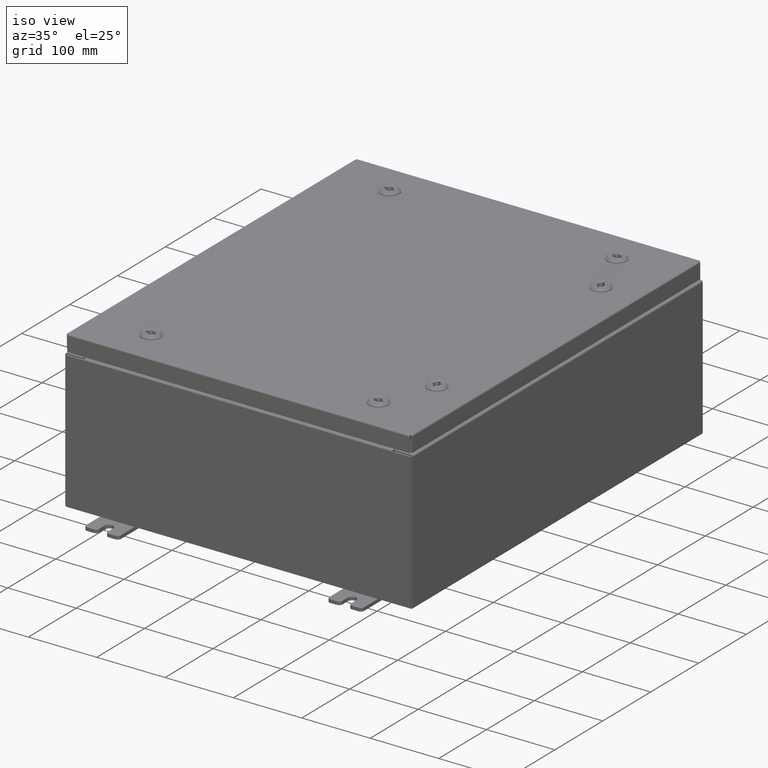
[diagram: clean part render]
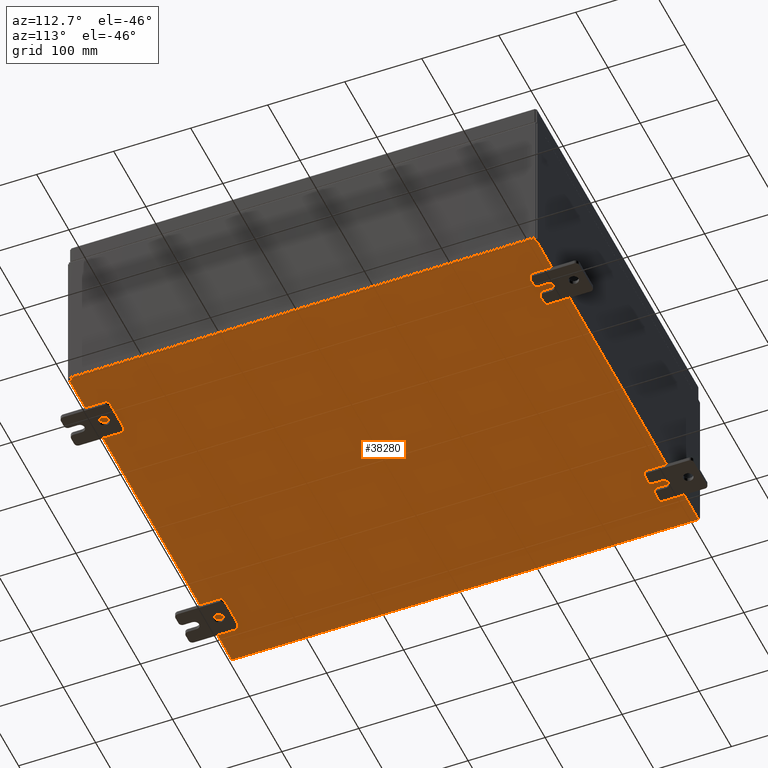
[diagram: tour spotlight — one face highlighted and labeled with its STEP entity id]
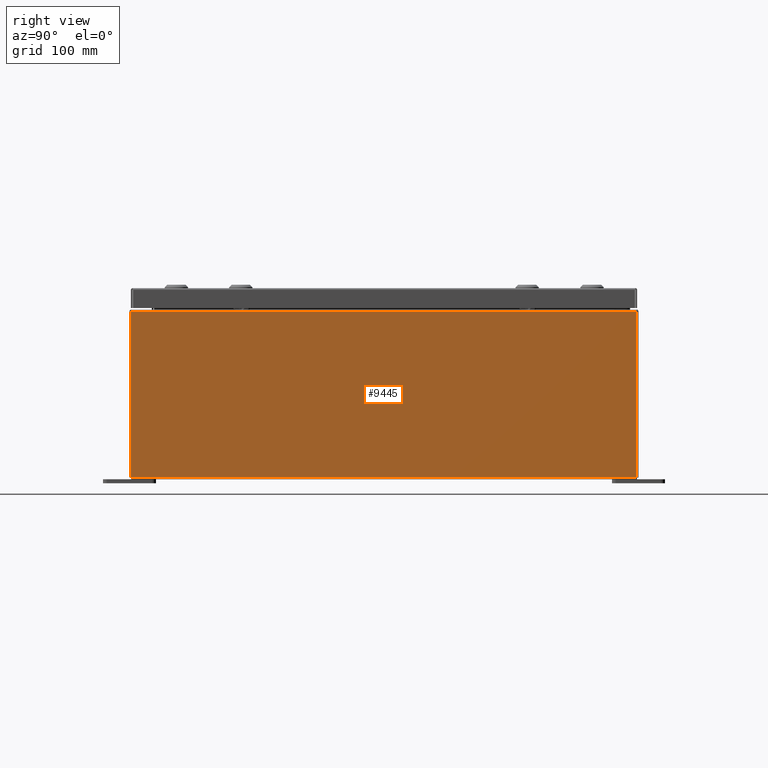
[diagram: tour spotlight — one face highlighted and labeled with its STEP entity id]
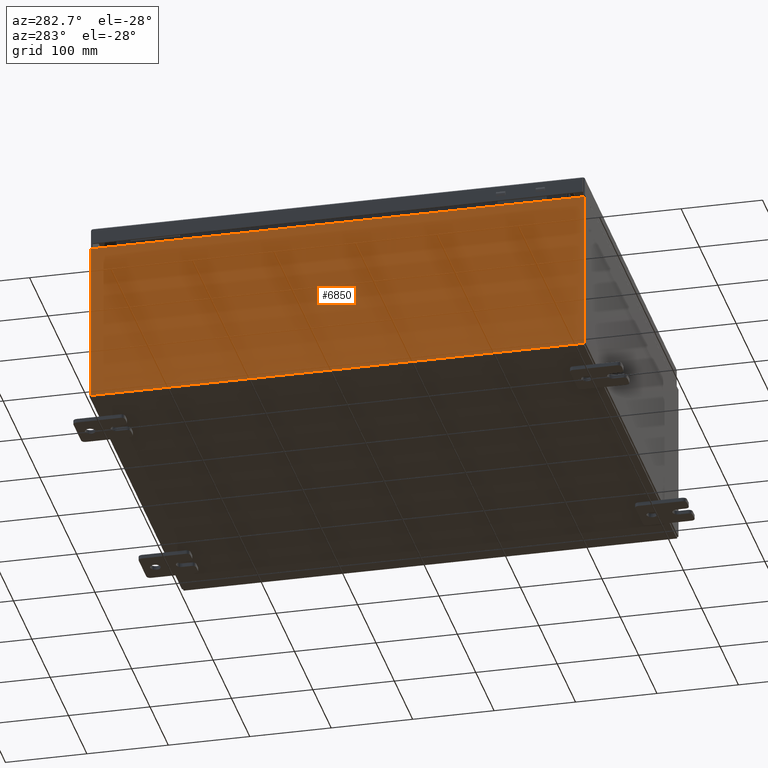
[diagram: tour spotlight — one face highlighted and labeled with its STEP entity id]
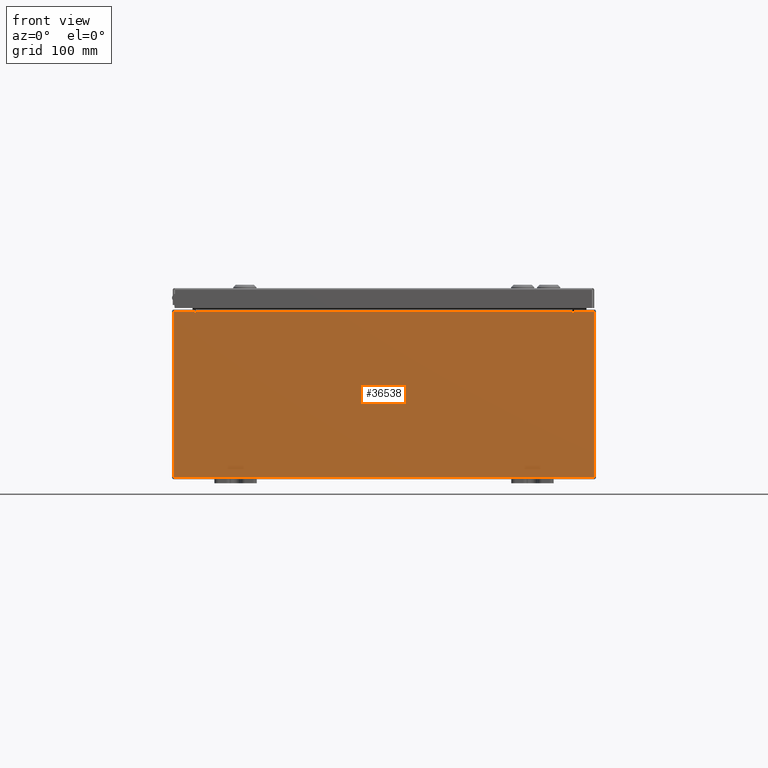
[diagram: tour spotlight — one face highlighted and labeled with its STEP entity id]
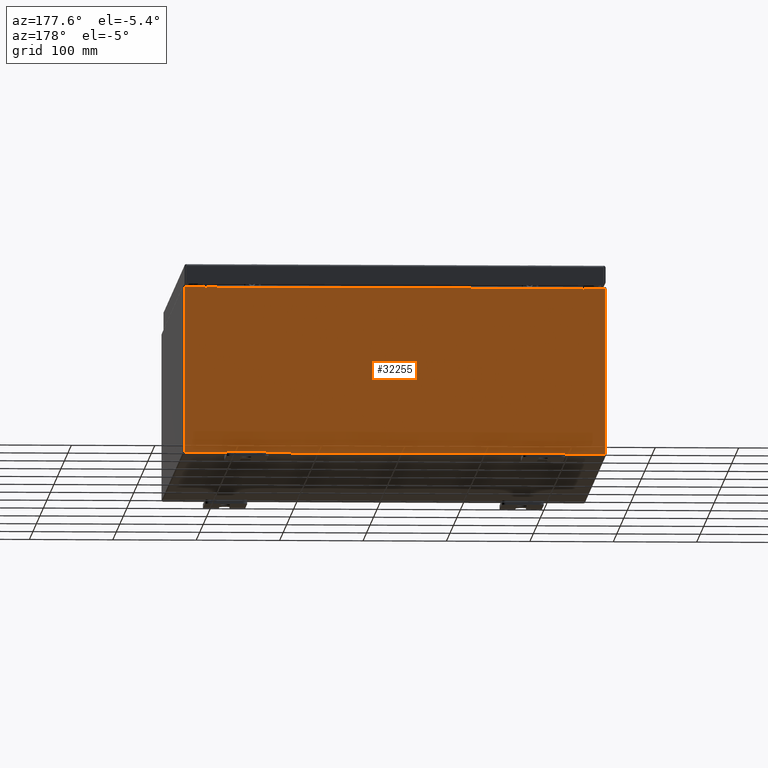
[diagram: tour spotlight — one face highlighted and labeled with its STEP entity id]
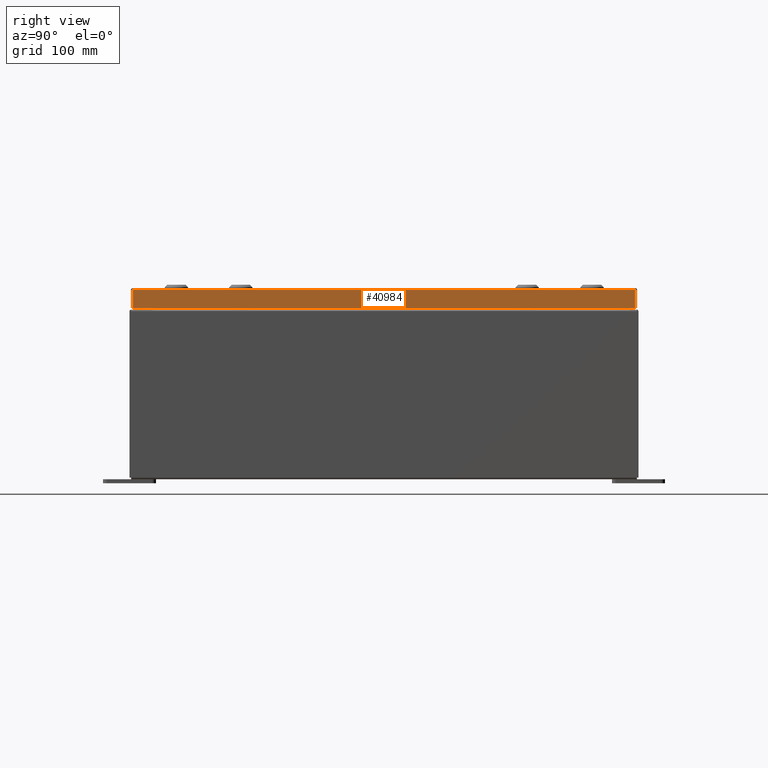
[diagram: tour spotlight — one face highlighted and labeled with its STEP entity id]
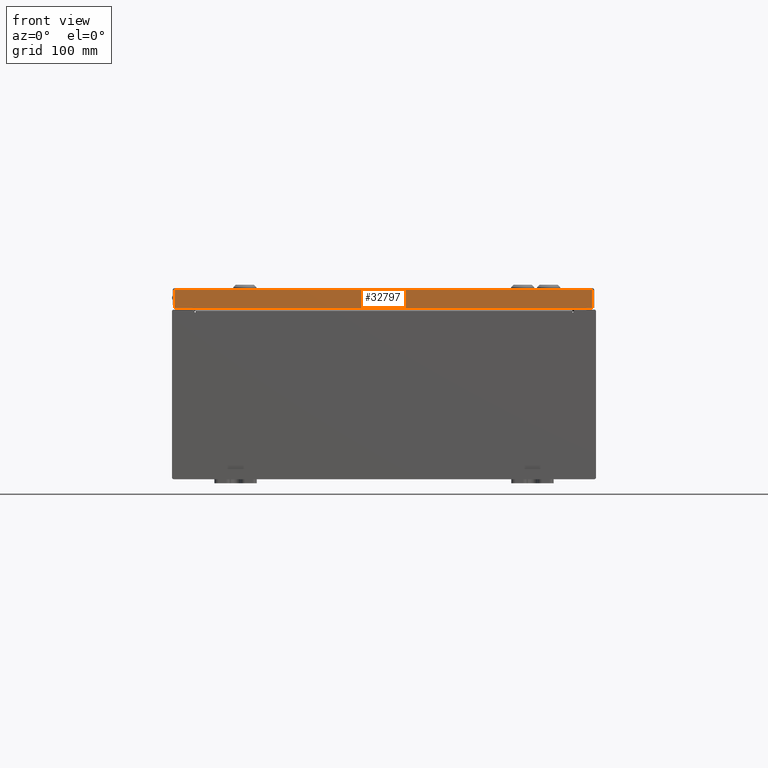
[diagram: tour spotlight — one face highlighted and labeled with its STEP entity id]
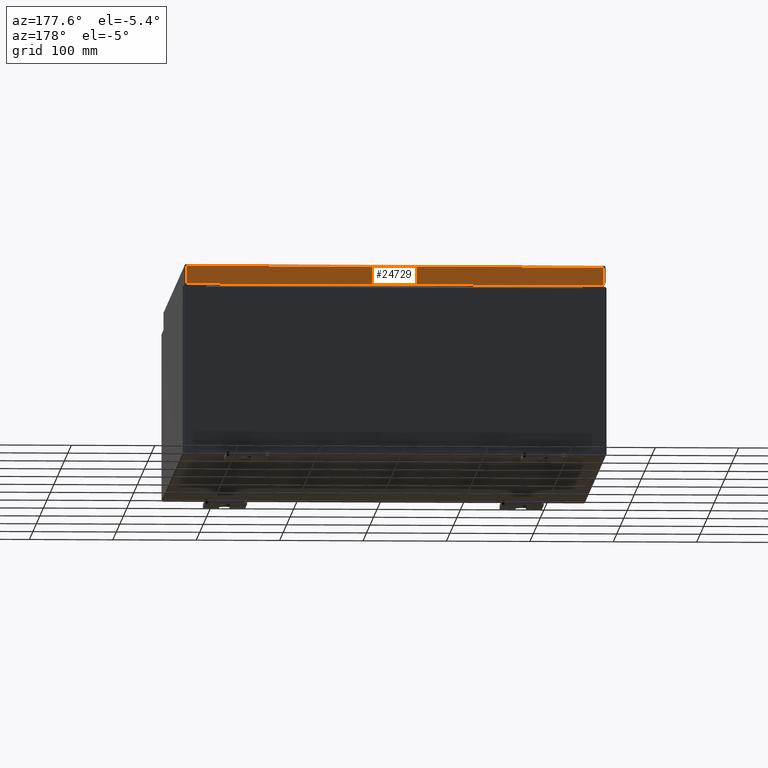
[diagram: tour spotlight — one face highlighted and labeled with its STEP entity id]
A machine part: a face-by-face anatomy tour. The part has 5420 B-rep faces; the first image is the clean iso view, then the 8 largest visible faces are spotlighted one at a time (largest first), each with its STEP entity span.

Face 1 — auxiliary view, entity #38280. In plain terms, the highlighted planar face has unit normal (0, 0, -1).
Definition (entity closure, byte-faithful):
#448 = DIRECTION ( 'NONE',  ( -1.000000000000000000, 0.0000000000000000000, -0.0000000000000000000 ) ) ;
#4368 = ORIENTED_EDGE ( 'NONE', *, *, #49358, .T. ) ;
#4683 = CARTESIAN_POINT ( 'NONE',  ( -9.912300000000000100, 11.92530000000000000, -0.07470000000000000300 ) ) ;
#5711 = DIRECTION ( 'NONE',  ( 1.000000000000000000, 0.0000000000000000000, 0.0000000000000000000 ) ) ;
#6492 = EDGE_CURVE ( 'NONE', #55885, #59183, #57642, .T. ) ;
#8258 = EDGE_CURVE ( 'NONE', #32728, #59183, #44493, .T. ) ;
#9872 = CARTESIAN_POINT ( 'NONE',  ( 9.912300000000000100, 11.92530000000000000, -0.07469999999999994700 ) ) ;
#9898 = EDGE_LOOP ( 'NONE', ( #47998, #41377, #17564, #4368 ) ) ;
#12381 = CARTESIAN_POINT ( 'NONE',  ( 9.912300000000000100, 11.92529999999999800, -0.07469999999999994700 ) ) ;
#13800 = VECTOR ( 'NONE', #5711, 39.37007874015748100 ) ;
#15310 = AXIS2_PLACEMENT_3D ( 'NONE', #54271, #29798, #448 ) ;
#17564 = ORIENTED_EDGE ( 'NONE', *, *, #8258, .F. ) ;
#20221 = CARTESIAN_POINT ( 'NONE',  ( -10.00000000000000000, -11.92530000000000000, -0.07470000000000000300 ) ) ;
#21238 = LINE ( 'NONE', #9872, #58925 ) ;
#24835 = PLANE ( 'NONE',  #15310 ) ;
#29798 = DIRECTION ( 'NONE',  ( 0.0000000000000000000, 0.0000000000000000000, -1.000000000000000000 ) ) ;
#32728 = VERTEX_POINT ( 'NONE', #12381 ) ;
#33397 = EDGE_CURVE ( 'NONE', #55885, #34973, #52944, .T. ) ;
#33437 = DIRECTION ( 'NONE',  ( -0.0000000000000000000, 1.000000000000000000, -0.0000000000000000000 ) ) ;
#34061 = DIRECTION ( 'NONE',  ( -0.0000000000000000000, -1.000000000000000000, -0.0000000000000000000 ) ) ;
#34630 = VECTOR ( 'NONE', #33437, 39.37007874015748100 ) ;
#34973 = VERTEX_POINT ( 'NONE', #59166 ) ;
#38280 = ADVANCED_FACE ( 'NONE', ( #47761 ), #24835, .T. ) ;
#41377 = ORIENTED_EDGE ( 'NONE', *, *, #6492, .T. ) ;
#42908 = VECTOR ( 'NONE', #45269, 39.37007874015748100 ) ;
#44493 = LINE ( 'NONE', #59833, #42908 ) ;
#45269 = DIRECTION ( 'NONE',  ( -1.000000000000000000, -0.0000000000000000000, -0.0000000000000000000 ) ) ;
#47761 = FACE_OUTER_BOUND ( 'NONE', #9898, .T. ) ;
#47998 = ORIENTED_EDGE ( 'NONE', *, *, #33397, .F. ) ;
#48260 = CARTESIAN_POINT ( 'NONE',  ( -9.912300000000000100, -11.92530000000000000, -0.07469999999999994700 ) ) ;
#49358 = EDGE_CURVE ( 'NONE', #32728, #34973, #21238, .T. ) ;
#52944 = LINE ( 'NONE', #20221, #13800 ) ;
#54271 = CARTESIAN_POINT ( 'NONE',  ( 0.0000000000000000000, 0.0000000000000000000, -0.07470000000000000300 ) ) ;
#55885 = VERTEX_POINT ( 'NONE', #62923 ) ;
#57642 = LINE ( 'NONE', #48260, #34630 ) ;
#58925 = VECTOR ( 'NONE', #34061, 39.37007874015748100 ) ;
#59166 = CARTESIAN_POINT ( 'NONE',  ( 9.912300000000000100, -11.92530000000000000, -0.07470000000000000300 ) ) ;
#59183 = VERTEX_POINT ( 'NONE', #4683 ) ;
#59833 = CARTESIAN_POINT ( 'NONE',  ( -10.00000000000000000, 11.92530000000000000, -0.07470000000000000300 ) ) ;
#62923 = CARTESIAN_POINT ( 'NONE',  ( -9.912300000000000100, -11.92529999999999800, -0.07469999999999994700 ) ) ;

Face 2 — right view, entity #9445. In plain terms, the highlighted planar face has unit normal (-1, 0, 0).
Definition (entity closure, byte-faithful):
#524 = CARTESIAN_POINT ( 'NONE',  ( 10.00000000000000000, -11.92530000000000000, 0.01299999999999984700 ) ) ;
#2202 = VECTOR ( 'NONE', #55506, 39.37007874015748100 ) ;
#6022 = LINE ( 'NONE', #45257, #17472 ) ;
#7447 = LINE ( 'NONE', #524, #31938 ) ;
#7645 = DIRECTION ( 'NONE',  ( -1.000000000000000000, 0.0000000000000000000, 3.584876173029202900E-015 ) ) ;
#9384 = VERTEX_POINT ( 'NONE', #41700 ) ;
#9445 = ADVANCED_FACE ( 'NONE', ( #29836 ), #51783, .F. ) ;
#14809 = EDGE_CURVE ( 'NONE', #53365, #9384, #19858, .T. ) ;
#15263 = LINE ( 'NONE', #50557, #2202 ) ;
#15887 = DIRECTION ( 'NONE',  ( -0.0000000000000000000, -1.000000000000000000, -0.0000000000000000000 ) ) ;
#16464 = CARTESIAN_POINT ( 'NONE',  ( 10.00000000000000000, 11.92529999999999800, 0.01299999999999984700 ) ) ;
#17439 = ORIENTED_EDGE ( 'NONE', *, *, #14809, .T. ) ;
#17472 = VECTOR ( 'NONE', #15887, 39.37007874015748100 ) ;
#19858 = LINE ( 'NONE', #23420, #32877 ) ;
#21380 = EDGE_CURVE ( 'NONE', #53365, #39662, #7447, .T. ) ;
#23420 = CARTESIAN_POINT ( 'NONE',  ( 10.00000000000000000, 11.92530000000000000, -3.610957538630361200E-014 ) ) ;
#25388 = ORIENTED_EDGE ( 'NONE', *, *, #21380, .F. ) ;
#26092 = CARTESIAN_POINT ( 'NONE',  ( 10.00000000000002800, -11.92530000000000000, 7.837599999999998300 ) ) ;
#28261 = AXIS2_PLACEMENT_3D ( 'NONE', #46869, #7645, #56727 ) ;
#28391 = DIRECTION ( 'NONE',  ( 3.584876173029202900E-015, 0.0000000000000000000, 1.000000000000000000 ) ) ;
#29836 = FACE_OUTER_BOUND ( 'NONE', #56090, .T. ) ;
#31938 = VECTOR ( 'NONE', #34811, 39.37007874015748100 ) ;
#32877 = VECTOR ( 'NONE', #28391, 39.37007874015748100 ) ;
#34811 = DIRECTION ( 'NONE',  ( -0.0000000000000000000, -1.000000000000000000, -0.0000000000000000000 ) ) ;
#35220 = EDGE_CURVE ( 'NONE', #49604, #39662, #15263, .T. ) ;
#39662 = VERTEX_POINT ( 'NONE', #53769 ) ;
#41700 = CARTESIAN_POINT ( 'NONE',  ( 10.00000000000002800, 11.92529999999999800, 7.837599999999992100 ) ) ;
#45257 = CARTESIAN_POINT ( 'NONE',  ( 10.00000000000002800, 11.92530000000000000, 7.837599999999992100 ) ) ;
#46869 = CARTESIAN_POINT ( 'NONE',  ( 10.00000000000000000, 0.0000000000000000000, -3.610957538630361200E-014 ) ) ;
#47210 = ORIENTED_EDGE ( 'NONE', *, *, #48980, .T. ) ;
#48980 = EDGE_CURVE ( 'NONE', #9384, #49604, #6022, .T. ) ;
#49604 = VERTEX_POINT ( 'NONE', #26092 ) ;
#50557 = CARTESIAN_POINT ( 'NONE',  ( 10.00000000000000000, -11.92530000000000000, -3.610957538630361200E-014 ) ) ;
#51783 = PLANE ( 'NONE',  #28261 ) ;
#53365 = VERTEX_POINT ( 'NONE', #16464 ) ;
#53769 = CARTESIAN_POINT ( 'NONE',  ( 10.00000000000000000, -11.92530000000000000, 0.01299999999999983600 ) ) ;
#55019 = ORIENTED_EDGE ( 'NONE', *, *, #35220, .T. ) ;
#55506 = DIRECTION ( 'NONE',  ( -3.584876173029202900E-015, 0.0000000000000000000, -1.000000000000000000 ) ) ;
#56090 = EDGE_LOOP ( 'NONE', ( #47210, #55019, #25388, #17439 ) ) ;
#56727 = DIRECTION ( 'NONE',  ( 3.584876173029202900E-015, 0.0000000000000000000, 1.000000000000000000 ) ) ;

Face 3 — auxiliary view, entity #6850. In plain terms, the highlighted planar face has unit normal (1, 0, 0).
Definition (entity closure, byte-faithful):
#1469 = ORIENTED_EDGE ( 'NONE', *, *, #57946, .T. ) ;
#3435 = EDGE_LOOP ( 'NONE', ( #10792, #1469, #3616, #31341 ) ) ;
#3616 = ORIENTED_EDGE ( 'NONE', *, *, #12134, .F. ) ;
#5284 = CARTESIAN_POINT ( 'NONE',  ( -10.00000000000000000, 11.92530000000000000, -3.610957538630361200E-014 ) ) ;
#6245 = VERTEX_POINT ( 'NONE', #12301 ) ;
#6850 = ADVANCED_FACE ( 'NONE', ( #56859 ), #46324, .F. ) ;
#9029 = DIRECTION ( 'NONE',  ( 0.0000000000000000000, 1.000000000000000000, 0.0000000000000000000 ) ) ;
#10792 = ORIENTED_EDGE ( 'NONE', *, *, #38026, .T. ) ;
#12134 = EDGE_CURVE ( 'NONE', #36486, #45779, #43046, .T. ) ;
#12301 = CARTESIAN_POINT ( 'NONE',  ( -10.00000000000002800, -11.92529999999999500, 7.837599999999999200 ) ) ;
#13450 = CARTESIAN_POINT ( 'NONE',  ( -10.00000000000002800, 11.92530000000000000, 7.837599999999999200 ) ) ;
#15458 = VERTEX_POINT ( 'NONE', #13450 ) ;
#16956 = DIRECTION ( 'NONE',  ( 1.000000000000000000, 0.0000000000000000000, 3.584876173029202900E-015 ) ) ;
#17613 = VECTOR ( 'NONE', #9029, 39.37007874015748100 ) ;
#17699 = EDGE_CURVE ( 'NONE', #36486, #6245, #37562, .T. ) ;
#24482 = VECTOR ( 'NONE', #36307, 39.37007874015748100 ) ;
#26535 = CARTESIAN_POINT ( 'NONE',  ( -10.00000000000000000, 0.0000000000000000000, -3.610957538630361200E-014 ) ) ;
#28495 = CARTESIAN_POINT ( 'NONE',  ( -10.00000000000002800, -11.92530000000000000, 7.837599999999999200 ) ) ;
#29121 = VECTOR ( 'NONE', #58503, 39.37007874015748100 ) ;
#30668 = LINE ( 'NONE', #28495, #17613 ) ;
#31341 = ORIENTED_EDGE ( 'NONE', *, *, #17699, .T. ) ;
#31818 = CARTESIAN_POINT ( 'NONE',  ( -10.00000000000000000, -11.92529999999999800, 0.01299999999999984700 ) ) ;
#33171 = CARTESIAN_POINT ( 'NONE',  ( -10.00000000000000000, 11.92530000000000000, 0.01299999999999984700 ) ) ;
#33539 = AXIS2_PLACEMENT_3D ( 'NONE', #26535, #16956, #51256 ) ;
#36307 = DIRECTION ( 'NONE',  ( -3.584876173029202900E-015, 0.0000000000000000000, 1.000000000000000000 ) ) ;
#36486 = VERTEX_POINT ( 'NONE', #31818 ) ;
#37562 = LINE ( 'NONE', #45980, #24482 ) ;
#38026 = EDGE_CURVE ( 'NONE', #6245, #15458, #30668, .T. ) ;
#41528 = VECTOR ( 'NONE', #47970, 39.37007874015748100 ) ;
#43046 = LINE ( 'NONE', #33171, #41528 ) ;
#45779 = VERTEX_POINT ( 'NONE', #47678 ) ;
#45980 = CARTESIAN_POINT ( 'NONE',  ( -10.00000000000000000, -11.92530000000000000, -3.610957538630361200E-014 ) ) ;
#46324 = PLANE ( 'NONE',  #33539 ) ;
#47678 = CARTESIAN_POINT ( 'NONE',  ( -10.00000000000000000, 11.92530000000000000, 0.01299999999999983600 ) ) ;
#47970 = DIRECTION ( 'NONE',  ( -0.0000000000000000000, 1.000000000000000000, -0.0000000000000000000 ) ) ;
#51256 = DIRECTION ( 'NONE',  ( 3.584876173029202900E-015, 0.0000000000000000000, -1.000000000000000000 ) ) ;
#56790 = LINE ( 'NONE', #5284, #29121 ) ;
#56859 = FACE_OUTER_BOUND ( 'NONE', #3435, .T. ) ;
#57946 = EDGE_CURVE ( 'NONE', #15458, #45779, #56790, .T. ) ;
#58503 = DIRECTION ( 'NONE',  ( 3.584876173029202900E-015, 0.0000000000000000000, -1.000000000000000000 ) ) ;

Face 4 — front view, entity #36538. In plain terms, the highlighted planar face has unit normal (-0, 1, -0).
Definition (entity closure, byte-faithful):
#1486 = DIRECTION ( 'NONE',  ( 1.000000000000000000, 0.0000000000000000000, 0.0000000000000000000 ) ) ;
#2368 = ORIENTED_EDGE ( 'NONE', *, *, #40677, .T. ) ;
#2388 = CARTESIAN_POINT ( 'NONE',  ( -8.905874999999998200, 0.0000000000000000000, 3.874949999999999700 ) ) ;
#2826 = VECTOR ( 'NONE', #18896, 39.37007874015748100 ) ;
#4478 = CARTESIAN_POINT ( 'NONE',  ( -9.925300000000000000, 0.0000000000000000000, 3.925299999999999600 ) ) ;
#5023 = VERTEX_POINT ( 'NONE', #47982 ) ;
#5471 = ORIENTED_EDGE ( 'NONE', *, *, #8925, .F. ) ;
#6211 = ORIENTED_EDGE ( 'NONE', *, *, #25896, .F. ) ;
#7220 = EDGE_CURVE ( 'NONE', #28067, #51413, #60675, .T. ) ;
#7322 = DIRECTION ( 'NONE',  ( 0.0000000000000000000, 0.0000000000000000000, -1.000000000000000000 ) ) ;
#7650 = DIRECTION ( 'NONE',  ( 0.0000000000000000000, -1.000000000000000000, 0.0000000000000000000 ) ) ;
#8925 = EDGE_CURVE ( 'NONE', #21449, #51413, #40593, .T. ) ;
#8941 = ORIENTED_EDGE ( 'NONE', *, *, #19127, .T. ) ;
#9482 = VECTOR ( 'NONE', #38790, 39.37007874015748100 ) ;
#9692 = ORIENTED_EDGE ( 'NONE', *, *, #36171, .F. ) ;
#10643 = LINE ( 'NONE', #31275, #35166 ) ;
#12068 = EDGE_CURVE ( 'NONE', #38954, #49875, #44633, .T. ) ;
#12354 = CARTESIAN_POINT ( 'NONE',  ( 0.0000000000000000000, 0.0000000000000000000, 0.0000000000000000000 ) ) ;
#13268 = DIRECTION ( 'NONE',  ( 0.0000000000000000000, 0.0000000000000000000, -1.000000000000000000 ) ) ;
#13745 = DIRECTION ( 'NONE',  ( -0.0000000000000000000, 1.000000000000000000, -0.0000000000000000000 ) ) ;
#14533 = VECTOR ( 'NONE', #1486, 39.37007874015748100 ) ;
#14941 = CARTESIAN_POINT ( 'NONE',  ( 9.925300000000000000, 0.0000000000000000000, 3.925299999999999600 ) ) ;
#15235 = CIRCLE ( 'NONE', #23770, 0.01867500000000003900 ) ;
#15795 = DIRECTION ( 'NONE',  ( 0.0000000000000000000, 0.0000000000000000000, -1.000000000000000000 ) ) ;
#17559 = CARTESIAN_POINT ( 'NONE',  ( 9.925300000000000000, 0.0000000000000000000, -3.925299999999999600 ) ) ;
#17666 = CARTESIAN_POINT ( 'NONE',  ( -9.925300000000000000, 0.0000000000000000000, 3.925299999999999600 ) ) ;
#18896 = DIRECTION ( 'NONE',  ( -1.000000000000000000, -0.0000000000000000000, -0.0000000000000000000 ) ) ;
#19023 = CARTESIAN_POINT ( 'NONE',  ( -9.925300000000000000, 0.0000000000000000000, 3.925299999999999600 ) ) ;
#19103 = CIRCLE ( 'NONE', #35849, 0.01867500000000003900 ) ;
#19127 = EDGE_CURVE ( 'NONE', #32569, #62309, #10643, .T. ) ;
#19938 = CARTESIAN_POINT ( 'NONE',  ( 8.924549999999831200, -0.0000000000000000000, -3.873765880731813500E-013 ) ) ;
#20043 = VECTOR ( 'NONE', #13268, 39.37007874015748100 ) ;
#20342 = CARTESIAN_POINT ( 'NONE',  ( 8.924550000000000000, 0.0000000000000000000, 3.925299999999999600 ) ) ;
#21060 = ORIENTED_EDGE ( 'NONE', *, *, #41738, .T. ) ;
#21449 = VERTEX_POINT ( 'NONE', #44905 ) ;
#22545 = ORIENTED_EDGE ( 'NONE', *, *, #25864, .T. ) ;
#22996 = VECTOR ( 'NONE', #33806, 39.37007874015748100 ) ;
#23318 = ORIENTED_EDGE ( 'NONE', *, *, #7220, .T. ) ;
#23770 = AXIS2_PLACEMENT_3D ( 'NONE', #2388, #36660, #7322 ) ;
#25864 = EDGE_CURVE ( 'NONE', #49405, #28067, #53227, .T. ) ;
#25896 = EDGE_CURVE ( 'NONE', #38111, #58668, #63160, .T. ) ;
#27298 = LINE ( 'NONE', #48302, #2826 ) ;
#27817 = CARTESIAN_POINT ( 'NONE',  ( -8.887200000000000000, -0.0000000000000000000, 0.0000000000000000000 ) ) ;
#28067 = VERTEX_POINT ( 'NONE', #17666 ) ;
#28914 = CARTESIAN_POINT ( 'NONE',  ( 8.887200000000000000, 0.0000000000000000000, 3.874949999999999700 ) ) ;
#28967 = AXIS2_PLACEMENT_3D ( 'NONE', #12354, #7650, #41901 ) ;
#29503 = DIRECTION ( 'NONE',  ( 0.0000000000000000000, 0.0000000000000000000, 1.000000000000000000 ) ) ;
#29525 = CARTESIAN_POINT ( 'NONE',  ( -8.887200000000000000, 1.024442997624098700E-016, 3.912299999999999700 ) ) ;
#30838 = CARTESIAN_POINT ( 'NONE',  ( -8.887200000000000000, 1.024442997624098700E-016, 3.912299999999999700 ) ) ;
#31275 = CARTESIAN_POINT ( 'NONE',  ( -9.925300000000000000, 0.0000000000000000000, 3.925299999999999600 ) ) ;
#32159 = CARTESIAN_POINT ( 'NONE',  ( -8.924550000000000000, 0.0000000000000000000, 3.925299999999999600 ) ) ;
#32308 = EDGE_CURVE ( 'NONE', #5023, #38111, #19103, .T. ) ;
#32569 = VERTEX_POINT ( 'NONE', #20342 ) ;
#32784 = VECTOR ( 'NONE', #15795, 39.37007874015748100 ) ;
#33002 = ORIENTED_EDGE ( 'NONE', *, *, #32308, .F. ) ;
#33806 = DIRECTION ( 'NONE',  ( 1.000000000000000000, 0.0000000000000000000, 0.0000000000000000000 ) ) ;
#33840 = CARTESIAN_POINT ( 'NONE',  ( 8.887200000000000000, 0.0000000000000000000, 0.0000000000000000000 ) ) ;
#35166 = VECTOR ( 'NONE', #36222, 39.37007874015748100 ) ;
#35258 = CARTESIAN_POINT ( 'NONE',  ( 9.925300000000000000, 0.0000000000000000000, 3.925299999999999600 ) ) ;
#35849 = AXIS2_PLACEMENT_3D ( 'NONE', #43098, #13745, #48022 ) ;
#36171 = EDGE_CURVE ( 'NONE', #32569, #5023, #39727, .T. ) ;
#36222 = DIRECTION ( 'NONE',  ( 1.000000000000000000, 0.0000000000000000000, 0.0000000000000000000 ) ) ;
#36538 = ADVANCED_FACE ( 'NONE', ( #43503 ), #41705, .F. ) ;
#36660 = DIRECTION ( 'NONE',  ( -0.0000000000000000000, 1.000000000000000000, -0.0000000000000000000 ) ) ;
#38111 = VERTEX_POINT ( 'NONE', #28914 ) ;
#38790 = DIRECTION ( 'NONE',  ( 0.0000000000000000000, 0.0000000000000000000, 1.000000000000000000 ) ) ;
#38954 = VERTEX_POINT ( 'NONE', #29525 ) ;
#39402 = CARTESIAN_POINT ( 'NONE',  ( -8.924550000000000000, -0.0000000000000000000, 0.0000000000000000000 ) ) ;
#39727 = LINE ( 'NONE', #19938, #52742 ) ;
#40574 = LINE ( 'NONE', #30838, #14533 ) ;
#40593 = LINE ( 'NONE', #39402, #52104 ) ;
#40677 = EDGE_CURVE ( 'NONE', #38954, #58668, #40574, .T. ) ;
#41705 = PLANE ( 'NONE',  #28967 ) ;
#41738 = EDGE_CURVE ( 'NONE', #62309, #52693, #60471, .T. ) ;
#41901 = DIRECTION ( 'NONE',  ( 0.0000000000000000000, -0.0000000000000000000, -1.000000000000000000 ) ) ;
#43098 = CARTESIAN_POINT ( 'NONE',  ( 8.905875000000000000, 0.0000000000000000000, 3.874949999999999700 ) ) ;
#43186 = EDGE_CURVE ( 'NONE', #52693, #49405, #27298, .T. ) ;
#43503 = FACE_OUTER_BOUND ( 'NONE', #58559, .T. ) ;
#44404 = DIRECTION ( 'NONE',  ( -4.340572780400004900E-014, 0.0000000000000000000, -1.000000000000000000 ) ) ;
#44633 = LINE ( 'NONE', #27817, #20043 ) ;
#44905 = CARTESIAN_POINT ( 'NONE',  ( -8.924549999999998200, 0.0000000000000000000, 3.874949999999999700 ) ) ;
#46483 = ORIENTED_EDGE ( 'NONE', *, *, #43186, .T. ) ;
#47982 = CARTESIAN_POINT ( 'NONE',  ( 8.924550000000000000, 0.0000000000000000000, 3.874949999999999700 ) ) ;
#48022 = DIRECTION ( 'NONE',  ( 0.0000000000000000000, 0.0000000000000000000, -1.000000000000000000 ) ) ;
#48302 = CARTESIAN_POINT ( 'NONE',  ( -9.925300000000000000, 0.0000000000000000000, -3.925299999999999600 ) ) ;
#48439 = DIRECTION ( 'NONE',  ( -0.0000000000000000000, -0.0000000000000000000, 1.000000000000000000 ) ) ;
#48597 = VECTOR ( 'NONE', #48439, 39.37007874015748100 ) ;
#49135 = ORIENTED_EDGE ( 'NONE', *, *, #12068, .F. ) ;
#49405 = VERTEX_POINT ( 'NONE', #54053 ) ;
#49875 = VERTEX_POINT ( 'NONE', #51820 ) ;
#51413 = VERTEX_POINT ( 'NONE', #32159 ) ;
#51820 = CARTESIAN_POINT ( 'NONE',  ( -8.887200000000000000, -0.0000000000000000000, 3.874949999999999700 ) ) ;
#52104 = VECTOR ( 'NONE', #29503, 39.37007874015748100 ) ;
#52693 = VERTEX_POINT ( 'NONE', #17559 ) ;
#52742 = VECTOR ( 'NONE', #44404, 39.37007874015748100 ) ;
#53227 = LINE ( 'NONE', #19023, #48597 ) ;
#54053 = CARTESIAN_POINT ( 'NONE',  ( -9.925300000000000000, 0.0000000000000000000, -3.925299999999999600 ) ) ;
#55356 = ORIENTED_EDGE ( 'NONE', *, *, #60746, .F. ) ;
#58559 = EDGE_LOOP ( 'NONE', ( #5471, #55356, #49135, #2368, #6211, #33002, #9692, #8941, #21060, #46483, #22545, #23318 ) ) ;
#58668 = VERTEX_POINT ( 'NONE', #59599 ) ;
#59599 = CARTESIAN_POINT ( 'NONE',  ( 8.887200000000000000, 0.0000000000000000000, 3.912299999999999700 ) ) ;
#60471 = LINE ( 'NONE', #35258, #32784 ) ;
#60675 = LINE ( 'NONE', #4478, #22996 ) ;
#60746 = EDGE_CURVE ( 'NONE', #49875, #21449, #15235, .T. ) ;
#62309 = VERTEX_POINT ( 'NONE', #14941 ) ;
#63160 = LINE ( 'NONE', #33840, #9482 ) ;

Face 5 — auxiliary view, entity #32255. In plain terms, the highlighted planar face has unit normal (0, -1, 0).
Definition (entity closure, byte-faithful):
#1638 = VERTEX_POINT ( 'NONE', #36340 ) ;
#1793 = LINE ( 'NONE', #16601, #11505 ) ;
#2944 = CARTESIAN_POINT ( 'NONE',  ( -8.924550000000000000, -0.0000000000000000000, 0.0000000000000000000 ) ) ;
#3615 = ORIENTED_EDGE ( 'NONE', *, *, #22913, .F. ) ;
#3745 = EDGE_CURVE ( 'NONE', #34903, #10431, #45554, .T. ) ;
#3888 = CARTESIAN_POINT ( 'NONE',  ( 8.887200000000000000, 0.0000000000000000000, 3.874949999999999700 ) ) ;
#4655 = CARTESIAN_POINT ( 'NONE',  ( 0.0000000000000000000, 0.0000000000000000000, 0.0000000000000000000 ) ) ;
#5589 = LINE ( 'NONE', #2944, #41576 ) ;
#5623 = EDGE_CURVE ( 'NONE', #26602, #60751, #5589, .T. ) ;
#8318 = CARTESIAN_POINT ( 'NONE',  ( -8.887200000000000000, -0.0000000000000000000, 3.874949999999999700 ) ) ;
#8586 = CARTESIAN_POINT ( 'NONE',  ( -8.887200000000000000, -0.0000000000000000000, 0.0000000000000000000 ) ) ;
#8820 = DIRECTION ( 'NONE',  ( -0.0000000000000000000, 1.000000000000000000, -0.0000000000000000000 ) ) ;
#9850 = VERTEX_POINT ( 'NONE', #11737 ) ;
#10431 = VERTEX_POINT ( 'NONE', #11467 ) ;
#10522 = LINE ( 'NONE', #24380, #25044 ) ;
#11467 = CARTESIAN_POINT ( 'NONE',  ( -9.925300000000000000, 0.0000000000000000000, 3.925299999999999600 ) ) ;
#11505 = VECTOR ( 'NONE', #45970, 39.37007874015748100 ) ;
#11589 = ORIENTED_EDGE ( 'NONE', *, *, #33216, .T. ) ;
#11737 = CARTESIAN_POINT ( 'NONE',  ( 9.925300000000000000, 0.0000000000000000000, -3.925299999999999600 ) ) ;
#11987 = CARTESIAN_POINT ( 'NONE',  ( 9.925300000000000000, 0.0000000000000000000, 3.925299999999999600 ) ) ;
#12410 = ORIENTED_EDGE ( 'NONE', *, *, #29481, .T. ) ;
#13480 = DIRECTION ( 'NONE',  ( 0.0000000000000000000, 0.0000000000000000000, -1.000000000000000000 ) ) ;
#14528 = CARTESIAN_POINT ( 'NONE',  ( -9.925300000000000000, 0.0000000000000000000, -3.925299999999999600 ) ) ;
#16601 = CARTESIAN_POINT ( 'NONE',  ( 8.924549999999831200, -0.0000000000000000000, -3.873765880731813500E-013 ) ) ;
#16995 = LINE ( 'NONE', #44683, #25374 ) ;
#17011 = CARTESIAN_POINT ( 'NONE',  ( 8.887200000000000000, 0.0000000000000000000, 3.912299999999999700 ) ) ;
#18137 = CARTESIAN_POINT ( 'NONE',  ( -9.925300000000000000, 0.0000000000000000000, -3.925299999999999600 ) ) ;
#19923 = CARTESIAN_POINT ( 'NONE',  ( 8.924550000000000000, 0.0000000000000000000, 3.925299999999999600 ) ) ;
#19983 = DIRECTION ( 'NONE',  ( 1.000000000000000000, 0.0000000000000000000, 0.0000000000000000000 ) ) ;
#20019 = DIRECTION ( 'NONE',  ( -0.0000000000000000000, -0.0000000000000000000, 1.000000000000000000 ) ) ;
#20116 = VERTEX_POINT ( 'NONE', #8318 ) ;
#20500 = ORIENTED_EDGE ( 'NONE', *, *, #3745, .T. ) ;
#20798 = ORIENTED_EDGE ( 'NONE', *, *, #22765, .F. ) ;
#22165 = FACE_OUTER_BOUND ( 'NONE', #58469, .T. ) ;
#22424 = CARTESIAN_POINT ( 'NONE',  ( -8.905874999999998200, 0.0000000000000000000, 3.874949999999999700 ) ) ;
#22765 = EDGE_CURVE ( 'NONE', #50350, #36908, #10522, .T. ) ;
#22913 = EDGE_CURVE ( 'NONE', #20116, #26602, #59620, .T. ) ;
#23045 = DIRECTION ( 'NONE',  ( 1.000000000000000000, 0.0000000000000000000, 0.0000000000000000000 ) ) ;
#24088 = DIRECTION ( 'NONE',  ( -1.000000000000000000, -0.0000000000000000000, -0.0000000000000000000 ) ) ;
#24280 = DIRECTION ( 'NONE',  ( 0.0000000000000000000, -1.000000000000000000, 0.0000000000000000000 ) ) ;
#24347 = VERTEX_POINT ( 'NONE', #25110 ) ;
#24380 = CARTESIAN_POINT ( 'NONE',  ( 8.887200000000000000, 0.0000000000000000000, 0.0000000000000000000 ) ) ;
#24396 = VECTOR ( 'NONE', #23045, 39.37007874015748100 ) ;
#24491 = DIRECTION ( 'NONE',  ( 1.000000000000000000, 0.0000000000000000000, 0.0000000000000000000 ) ) ;
#25044 = VECTOR ( 'NONE', #39244, 39.37007874015748100 ) ;
#25110 = CARTESIAN_POINT ( 'NONE',  ( -8.887200000000000000, 1.024442997624098700E-016, 3.912299999999999700 ) ) ;
#25374 = VECTOR ( 'NONE', #19983, 39.37007874015748100 ) ;
#26602 = VERTEX_POINT ( 'NONE', #34118 ) ;
#26757 = CARTESIAN_POINT ( 'NONE',  ( -8.924550000000000000, 0.0000000000000000000, 3.925299999999999600 ) ) ;
#26839 = VECTOR ( 'NONE', #50967, 39.37007874015748100 ) ;
#27355 = DIRECTION ( 'NONE',  ( 0.0000000000000000000, 0.0000000000000000000, -1.000000000000000000 ) ) ;
#28613 = EDGE_CURVE ( 'NONE', #10431, #60751, #16995, .T. ) ;
#29235 = CARTESIAN_POINT ( 'NONE',  ( -9.925300000000000000, 0.0000000000000000000, 3.925299999999999600 ) ) ;
#29266 = AXIS2_PLACEMENT_3D ( 'NONE', #4655, #24280, #58675 ) ;
#29481 = EDGE_CURVE ( 'NONE', #34627, #9850, #52976, .T. ) ;
#29929 = LINE ( 'NONE', #58867, #42939 ) ;
#30710 = ORIENTED_EDGE ( 'NONE', *, *, #28613, .T. ) ;
#31407 = CARTESIAN_POINT ( 'NONE',  ( 9.925300000000000000, 0.0000000000000000000, 3.925299999999999600 ) ) ;
#31825 = ORIENTED_EDGE ( 'NONE', *, *, #53923, .F. ) ;
#32255 = ADVANCED_FACE ( 'NONE', ( #22165 ), #53751, .F. ) ;
#32289 = DIRECTION ( 'NONE',  ( 0.0000000000000000000, 0.0000000000000000000, 1.000000000000000000 ) ) ;
#32437 = VECTOR ( 'NONE', #13480, 39.37007874015748100 ) ;
#32443 = VECTOR ( 'NONE', #20019, 39.37007874015748100 ) ;
#33216 = EDGE_CURVE ( 'NONE', #38279, #34627, #29929, .T. ) ;
#33705 = CIRCLE ( 'NONE', #42736, 0.01867500000000003900 ) ;
#33918 = ORIENTED_EDGE ( 'NONE', *, *, #34896, .T. ) ;
#34118 = CARTESIAN_POINT ( 'NONE',  ( -8.924549999999998200, 0.0000000000000000000, 3.874949999999999700 ) ) ;
#34627 = VERTEX_POINT ( 'NONE', #11987 ) ;
#34813 = ORIENTED_EDGE ( 'NONE', *, *, #38011, .F. ) ;
#34896 = EDGE_CURVE ( 'NONE', #24347, #36908, #62032, .T. ) ;
#34903 = VERTEX_POINT ( 'NONE', #18137 ) ;
#36340 = CARTESIAN_POINT ( 'NONE',  ( 8.924550000000000000, 0.0000000000000000000, 3.874949999999999700 ) ) ;
#36908 = VERTEX_POINT ( 'NONE', #17011 ) ;
#38011 = EDGE_CURVE ( 'NONE', #1638, #50350, #33705, .T. ) ;
#38176 = CARTESIAN_POINT ( 'NONE',  ( 8.905875000000000000, 0.0000000000000000000, 3.874949999999999700 ) ) ;
#38279 = VERTEX_POINT ( 'NONE', #19923 ) ;
#39244 = DIRECTION ( 'NONE',  ( 0.0000000000000000000, 0.0000000000000000000, 1.000000000000000000 ) ) ;
#39963 = AXIS2_PLACEMENT_3D ( 'NONE', #22424, #56799, #27355 ) ;
#41576 = VECTOR ( 'NONE', #32289, 39.37007874015748100 ) ;
#42517 = EDGE_CURVE ( 'NONE', #9850, #34903, #45833, .T. ) ;
#42736 = AXIS2_PLACEMENT_3D ( 'NONE', #38176, #8820, #43090 ) ;
#42939 = VECTOR ( 'NONE', #24491, 39.37007874015748100 ) ;
#43090 = DIRECTION ( 'NONE',  ( 0.0000000000000000000, 0.0000000000000000000, -1.000000000000000000 ) ) ;
#44683 = CARTESIAN_POINT ( 'NONE',  ( -9.925300000000000000, 0.0000000000000000000, 3.925299999999999600 ) ) ;
#45552 = LINE ( 'NONE', #8586, #32437 ) ;
#45554 = LINE ( 'NONE', #29235, #32443 ) ;
#45833 = LINE ( 'NONE', #14528, #58892 ) ;
#45970 = DIRECTION ( 'NONE',  ( -4.340572780400004900E-014, 0.0000000000000000000, -1.000000000000000000 ) ) ;
#47535 = ORIENTED_EDGE ( 'NONE', *, *, #42517, .T. ) ;
#48795 = ORIENTED_EDGE ( 'NONE', *, *, #5623, .F. ) ;
#50350 = VERTEX_POINT ( 'NONE', #3888 ) ;
#50967 = DIRECTION ( 'NONE',  ( 0.0000000000000000000, 0.0000000000000000000, -1.000000000000000000 ) ) ;
#52485 = CARTESIAN_POINT ( 'NONE',  ( -8.887200000000000000, 1.024442997624098700E-016, 3.912299999999999700 ) ) ;
#52976 = LINE ( 'NONE', #31407, #26839 ) ;
#53751 = PLANE ( 'NONE',  #29266 ) ;
#53923 = EDGE_CURVE ( 'NONE', #24347, #20116, #45552, .T. ) ;
#56799 = DIRECTION ( 'NONE',  ( -0.0000000000000000000, 1.000000000000000000, -0.0000000000000000000 ) ) ;
#58183 = EDGE_CURVE ( 'NONE', #38279, #1638, #1793, .T. ) ;
#58469 = EDGE_LOOP ( 'NONE', ( #48795, #3615, #31825, #33918, #20798, #34813, #60238, #11589, #12410, #47535, #20500, #30710 ) ) ;
#58675 = DIRECTION ( 'NONE',  ( 0.0000000000000000000, -0.0000000000000000000, -1.000000000000000000 ) ) ;
#58867 = CARTESIAN_POINT ( 'NONE',  ( -9.925300000000000000, 0.0000000000000000000, 3.925299999999999600 ) ) ;
#58892 = VECTOR ( 'NONE', #24088, 39.37007874015748100 ) ;
#59620 = CIRCLE ( 'NONE', #39963, 0.01867500000000003900 ) ;
#60238 = ORIENTED_EDGE ( 'NONE', *, *, #58183, .F. ) ;
#60751 = VERTEX_POINT ( 'NONE', #26757 ) ;
#62032 = LINE ( 'NONE', #52485, #24396 ) ;

Face 6 — right view, entity #40984. In plain terms, the highlighted planar face has unit normal (1, 0, 0).
Definition (entity closure, byte-faithful):
#989 = CARTESIAN_POINT ( 'NONE',  ( 9.937499999999998200, 0.0000000000000000000, -0.08770000000000008300 ) ) ;
#1357 = VECTOR ( 'NONE', #52254, 39.37007874015748100 ) ;
#4624 = LINE ( 'NONE', #989, #55272 ) ;
#5312 = FACE_OUTER_BOUND ( 'NONE', #19537, .T. ) ;
#5435 = CARTESIAN_POINT ( 'NONE',  ( 9.937499999999998200, 11.84865786437626800, -0.08770000000000008300 ) ) ;
#8019 = DIRECTION ( 'NONE',  ( -2.532419924601866100E-015, -6.982962677686265900E-015, 1.000000000000000000 ) ) ;
#8472 = VERTEX_POINT ( 'NONE', #55758 ) ;
#14657 = VERTEX_POINT ( 'NONE', #43315 ) ;
#14947 = DIRECTION ( 'NONE',  ( 2.532419924601866100E-015, 0.0000000000000000000, -1.000000000000000000 ) ) ;
#16589 = AXIS2_PLACEMENT_3D ( 'NONE', #39363, #44271, #14947 ) ;
#17473 = EDGE_CURVE ( 'NONE', #23580, #8472, #4624, .T. ) ;
#19537 = EDGE_LOOP ( 'NONE', ( #62893, #52256, #33079, #57435 ) ) ;
#22218 = LINE ( 'NONE', #62266, #35306 ) ;
#22756 = DIRECTION ( 'NONE',  ( 0.0000000000000000000, -1.000000000000000000, 0.0000000000000000000 ) ) ;
#23580 = VERTEX_POINT ( 'NONE', #5435 ) ;
#27453 = CARTESIAN_POINT ( 'NONE',  ( 9.937499999999998200, -11.84865786437626900, -0.07469999999999980800 ) ) ;
#29679 = EDGE_CURVE ( 'NONE', #30291, #14657, #22218, .T. ) ;
#30291 = VERTEX_POINT ( 'NONE', #62008 ) ;
#30321 = DIRECTION ( 'NONE',  ( 0.0000000000000000000, -1.000000000000000000, 0.0000000000000000000 ) ) ;
#33079 = ORIENTED_EDGE ( 'NONE', *, *, #42343, .T. ) ;
#34393 = PLANE ( 'NONE',  #16589 ) ;
#35306 = VECTOR ( 'NONE', #22756, 39.37007874015748100 ) ;
#39363 = CARTESIAN_POINT ( 'NONE',  ( 9.937499999999998200, 0.0000000000000000000, 2.542673665674262200E-014 ) ) ;
#40984 = ADVANCED_FACE ( 'NONE', ( #5312 ), #34393, .T. ) ;
#42343 = EDGE_CURVE ( 'NONE', #30291, #23580, #51962, .T. ) ;
#43315 = CARTESIAN_POINT ( 'NONE',  ( 9.937500000000000000, -11.84865786437626200, -0.9376999999999997600 ) ) ;
#44231 = VECTOR ( 'NONE', #8019, 39.37007874015748100 ) ;
#44271 = DIRECTION ( 'NONE',  ( 1.000000000000000000, 0.0000000000000000000, 2.532419924601866100E-015 ) ) ;
#51962 = LINE ( 'NONE', #62311, #1357 ) ;
#52254 = DIRECTION ( 'NONE',  ( -2.532419924601866100E-015, -6.982962677686265900E-015, 1.000000000000000000 ) ) ;
#52256 = ORIENTED_EDGE ( 'NONE', *, *, #29679, .F. ) ;
#55272 = VECTOR ( 'NONE', #30321, 39.37007874015748100 ) ;
#55758 = CARTESIAN_POINT ( 'NONE',  ( 9.937499999999998200, -11.84865786437626900, -0.08770000000000008300 ) ) ;
#57269 = LINE ( 'NONE', #27453, #44231 ) ;
#57435 = ORIENTED_EDGE ( 'NONE', *, *, #17473, .T. ) ;
#62008 = CARTESIAN_POINT ( 'NONE',  ( 9.937500000000000000, 11.84865786437627300, -0.9376999999999997600 ) ) ;
#62266 = CARTESIAN_POINT ( 'NONE',  ( 9.937500000000000000, -11.93750000000000000, -0.9376999999999997600 ) ) ;
#62311 = CARTESIAN_POINT ( 'NONE',  ( 9.937499999999998200, 11.84865786437626900, 1.081654723043559700E-013 ) ) ;
#62445 = EDGE_CURVE ( 'NONE', #14657, #8472, #57269, .T. ) ;
#62893 = ORIENTED_EDGE ( 'NONE', *, *, #62445, .F. ) ;

Face 7 — front view, entity #32797. In plain terms, the highlighted planar face has unit normal (-0, 1, -0).
Definition (entity closure, byte-faithful):
#2206 = ORIENTED_EDGE ( 'NONE', *, *, #5786, .F. ) ;
#5786 = EDGE_CURVE ( 'NONE', #18497, #17236, #51570, .T. ) ;
#6240 = EDGE_CURVE ( 'NONE', #45641, #18497, #27696, .T. ) ;
#6553 = CARTESIAN_POINT ( 'NONE',  ( 9.937499999999998200, -11.93750000000000000, -0.08770000000000008300 ) ) ;
#6897 = CARTESIAN_POINT ( 'NONE',  ( -9.848657864376271200, -11.93750000000000000, 3.049157650594635900E-014 ) ) ;
#13958 = VECTOR ( 'NONE', #62091, 39.37007874015748100 ) ;
#14656 = EDGE_CURVE ( 'NONE', #17236, #24253, #62074, .T. ) ;
#17001 = AXIS2_PLACEMENT_3D ( 'NONE', #23004, #57376, #27951 ) ;
#17236 = VERTEX_POINT ( 'NONE', #62300 ) ;
#18497 = VERTEX_POINT ( 'NONE', #57050 ) ;
#19459 = EDGE_LOOP ( 'NONE', ( #59726, #45122, #25236, #2206 ) ) ;
#23004 = CARTESIAN_POINT ( 'NONE',  ( 3.739736551178919700E-030, -11.93750000000000000, 3.049157650594635900E-014 ) ) ;
#24253 = VERTEX_POINT ( 'NONE', #24484 ) ;
#24484 = CARTESIAN_POINT ( 'NONE',  ( -9.848657864376273000, -11.93750000000000200, -0.9376999999999973100 ) ) ;
#25236 = ORIENTED_EDGE ( 'NONE', *, *, #14656, .F. ) ;
#27696 = LINE ( 'NONE', #6553, #52292 ) ;
#27951 = DIRECTION ( 'NONE',  ( 0.0000000000000000000, 2.532419924601866100E-015, 1.000000000000000000 ) ) ;
#28160 = CARTESIAN_POINT ( 'NONE',  ( 9.848657864376265900, -11.93750000000000000, -0.07469999999999980800 ) ) ;
#31505 = DIRECTION ( 'NONE',  ( 0.0000000000000000000, -2.532419924601866100E-015, -1.000000000000000000 ) ) ;
#32797 = ADVANCED_FACE ( 'NONE', ( #42210 ), #52443, .F. ) ;
#38189 = DIRECTION ( 'NONE',  ( -1.000000000000000000, 4.379057701015054300E-047, 1.237063242414006300E-016 ) ) ;
#38418 = CARTESIAN_POINT ( 'NONE',  ( 9.937499999999998200, -11.93750000000000200, -0.9376999999999997600 ) ) ;
#41655 = DIRECTION ( 'NONE',  ( 1.000000000000000000, 3.132763603081817700E-031, -7.843572268217992100E-046 ) ) ;
#41896 = CARTESIAN_POINT ( 'NONE',  ( -9.848657864376273000, -11.93750000000000000, -0.08770000000000008300 ) ) ;
#42210 = FACE_OUTER_BOUND ( 'NONE', #19459, .T. ) ;
#45122 = ORIENTED_EDGE ( 'NONE', *, *, #56310, .T. ) ;
#45641 = VERTEX_POINT ( 'NONE', #41896 ) ;
#49253 = VECTOR ( 'NONE', #31505, 39.37007874015748100 ) ;
#50603 = VECTOR ( 'NONE', #38189, 39.37007874015748100 ) ;
#51570 = LINE ( 'NONE', #28160, #13958 ) ;
#52292 = VECTOR ( 'NONE', #41655, 39.37007874015748100 ) ;
#52443 = PLANE ( 'NONE',  #17001 ) ;
#56310 = EDGE_CURVE ( 'NONE', #45641, #24253, #62240, .T. ) ;
#57050 = CARTESIAN_POINT ( 'NONE',  ( 9.848657864376269400, -11.93750000000000000, -0.08770000000000008300 ) ) ;
#57376 = DIRECTION ( 'NONE',  ( -3.132763603081817200E-031, 1.000000000000000000, -2.532419924601866100E-015 ) ) ;
#59726 = ORIENTED_EDGE ( 'NONE', *, *, #6240, .F. ) ;
#62074 = LINE ( 'NONE', #38418, #50603 ) ;
#62091 = DIRECTION ( 'NONE',  ( -0.0000000000000000000, -2.532419924601866100E-015, -1.000000000000000000 ) ) ;
#62240 = LINE ( 'NONE', #6897, #49253 ) ;
#62300 = CARTESIAN_POINT ( 'NONE',  ( 9.848657864376265900, -11.93750000000000200, -0.9376999999999997600 ) ) ;

Face 8 — auxiliary view, entity #24729. In plain terms, the highlighted planar face has unit normal (0, -1, -0).
Definition (entity closure, byte-faithful):
#587 = LINE ( 'NONE', #51427, #10542 ) ;
#1553 = PLANE ( 'NONE',  #20666 ) ;
#4351 = CARTESIAN_POINT ( 'NONE',  ( 9.848657864376269400, 11.93750000000000000, -0.08769999999999791900 ) ) ;
#9316 = EDGE_CURVE ( 'NONE', #36057, #19292, #57458, .T. ) ;
#9526 = LINE ( 'NONE', #31933, #47106 ) ;
#10386 = CARTESIAN_POINT ( 'NONE',  ( 9.848657864376269400, 11.93750000000000200, -0.9376999999999997600 ) ) ;
#10542 = VECTOR ( 'NONE', #51199, 39.37007874015748100 ) ;
#10923 = VERTEX_POINT ( 'NONE', #4351 ) ;
#11100 = DIRECTION ( 'NONE',  ( 0.0000000000000000000, 2.532419924601859000E-015, -1.000000000000000000 ) ) ;
#11402 = DIRECTION ( 'NONE',  ( 0.0000000000000000000, 2.532419924601859000E-015, -1.000000000000000000 ) ) ;
#11410 = VECTOR ( 'NONE', #11100, 39.37007874015748100 ) ;
#11913 = CARTESIAN_POINT ( 'NONE',  ( -9.848657864376271200, 11.93750000000000000, -0.07469999999999980800 ) ) ;
#13141 = ORIENTED_EDGE ( 'NONE', *, *, #9316, .F. ) ;
#13956 = ORIENTED_EDGE ( 'NONE', *, *, #49763, .F. ) ;
#15167 = ORIENTED_EDGE ( 'NONE', *, *, #51405, .F. ) ;
#15653 = EDGE_CURVE ( 'NONE', #10923, #24305, #37469, .T. ) ;
#15820 = CARTESIAN_POINT ( 'NONE',  ( 9.848657864376265900, 11.93750000000000000, 3.049157650594627100E-014 ) ) ;
#17382 = DIRECTION ( 'NONE',  ( -1.000000000000000000, -3.480848447868679500E-032, -1.099611771034672100E-016 ) ) ;
#19292 = VERTEX_POINT ( 'NONE', #51665 ) ;
#19847 = VECTOR ( 'NONE', #46237, 39.37007874015748100 ) ;
#20666 = AXIS2_PLACEMENT_3D ( 'NONE', #35810, #40769, #11402 ) ;
#23052 = ORIENTED_EDGE ( 'NONE', *, *, #15653, .T. ) ;
#24305 = VERTEX_POINT ( 'NONE', #10386 ) ;
#24729 = ADVANCED_FACE ( 'NONE', ( #35611 ), #1553, .F. ) ;
#31933 = CARTESIAN_POINT ( 'NONE',  ( -9.937500000000001800, 11.93750000000000000, -0.08770000000000008300 ) ) ;
#35611 = FACE_OUTER_BOUND ( 'NONE', #42836, .T. ) ;
#35810 = CARTESIAN_POINT ( 'NONE',  ( -3.739736551178908500E-030, 11.93750000000000000, 3.049157650594627100E-014 ) ) ;
#36057 = VERTEX_POINT ( 'NONE', #53416 ) ;
#37469 = LINE ( 'NONE', #15820, #11410 ) ;
#40769 = DIRECTION ( 'NONE',  ( 3.132763603081808500E-031, -1.000000000000000000, -2.532419924601859000E-015 ) ) ;
#42836 = EDGE_LOOP ( 'NONE', ( #15167, #23052, #13956, #13141 ) ) ;
#46237 = DIRECTION ( 'NONE',  ( -0.0000000000000000000, 2.532419924601859000E-015, -1.000000000000000000 ) ) ;
#47106 = VECTOR ( 'NONE', #17382, 39.37007874015748100 ) ;
#49763 = EDGE_CURVE ( 'NONE', #19292, #24305, #587, .T. ) ;
#51199 = DIRECTION ( 'NONE',  ( 1.000000000000000000, -4.379057701015054300E-047, 1.237063242414006300E-016 ) ) ;
#51405 = EDGE_CURVE ( 'NONE', #10923, #36057, #9526, .T. ) ;
#51427 = CARTESIAN_POINT ( 'NONE',  ( -9.937500000000001800, 11.93750000000000200, -0.9377000000000023100 ) ) ;
#51665 = CARTESIAN_POINT ( 'NONE',  ( -9.848657864376271200, 11.93750000000000200, -0.9377000000000023100 ) ) ;
#53416 = CARTESIAN_POINT ( 'NONE',  ( -9.848657864376273000, 11.93750000000000000, -0.08769999999999898700 ) ) ;
#57458 = LINE ( 'NONE', #11913, #19847 ) ;